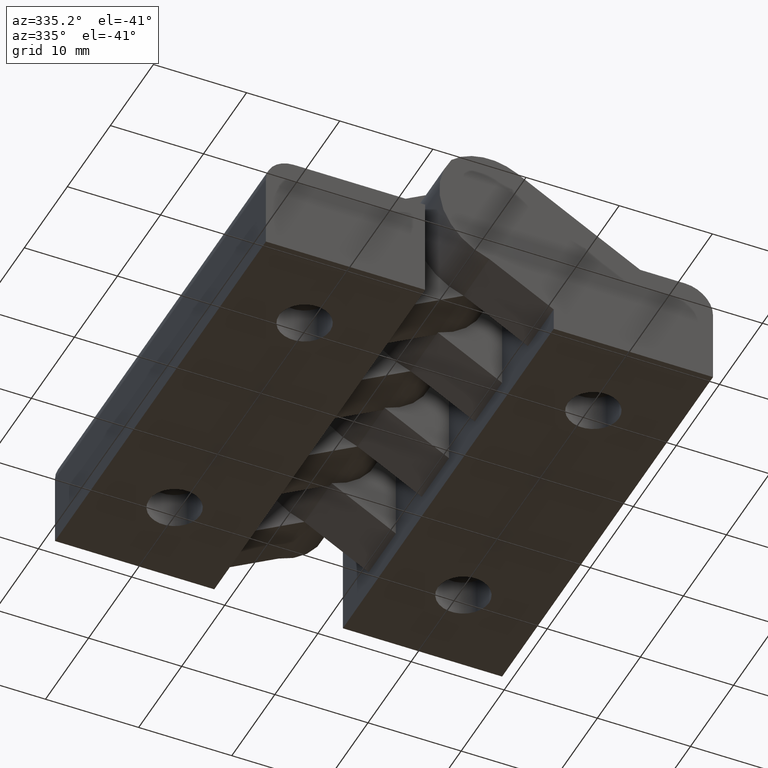
[diagram: clean part render]
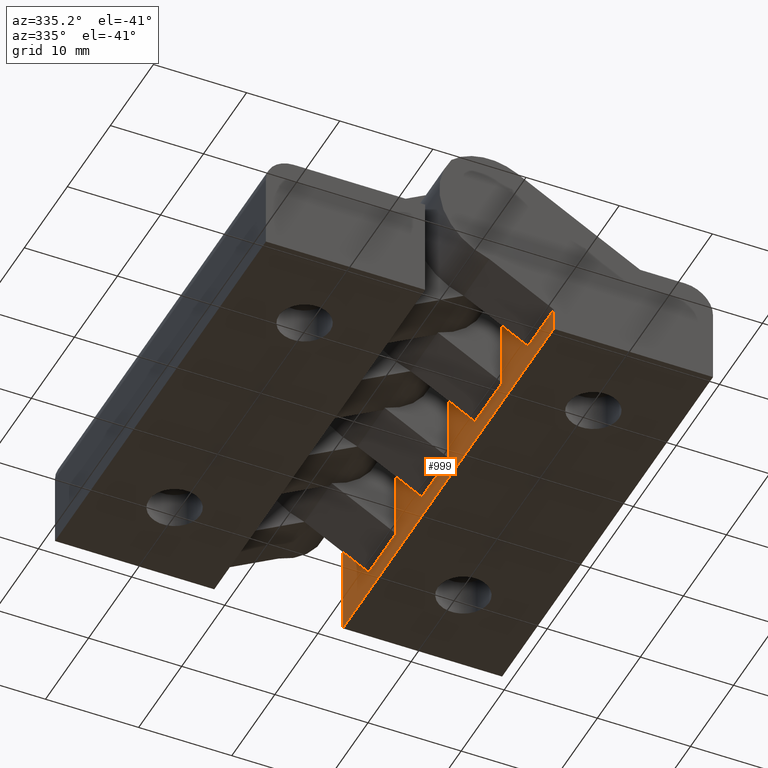
[diagram: same view with one face highlighted and labeled with its STEP entity id]
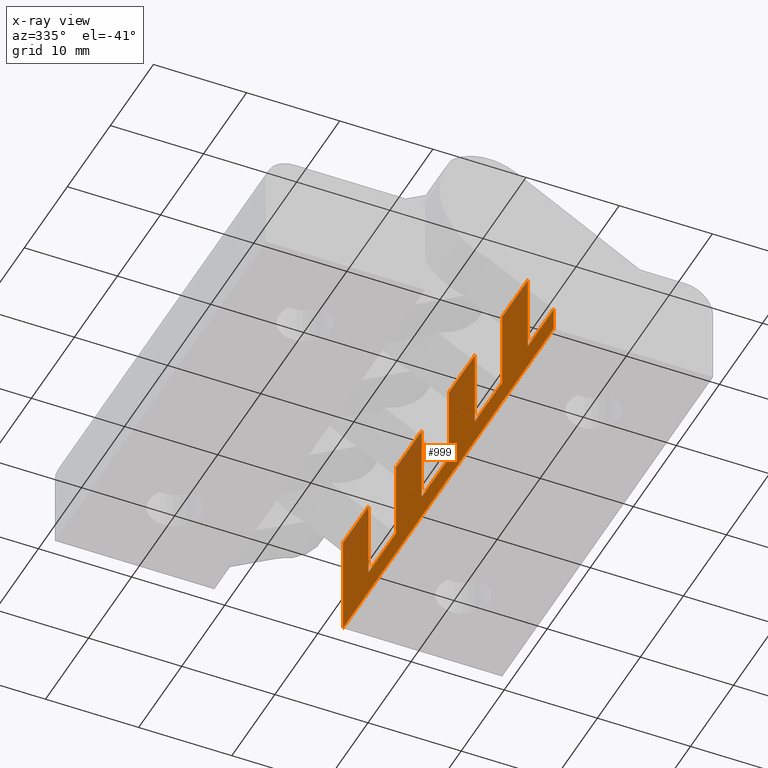
[diagram: x-ray of the same camera — body ghosted, the highlighted face saturated]
A machine part, auxiliary view. The second image highlights one B-rep face of the part: STEP entity #999.
The next image is the same camera in x-ray: the body ghosted, the highlighted face saturated — about 15% of this face is hidden behind the body in this view.
In plain terms, the highlighted planar face has unit normal (-1, 0, 0).
Its self-contained STEP definition (entity closure, byte-faithful):
#473=CARTESIAN_POINT('',(22.399999999910534,-27.600000000037646,2.499999999990111));
#474=VERTEX_POINT('',#473);
#482=CARTESIAN_POINT('',(22.399999999910534,-21.266666666704314,2.499999999990111));
#483=VERTEX_POINT('',#482);
#490=CARTESIAN_POINT('',(22.399999999910534,-21.266666666704314,2.499999999990111));
#491=DIRECTION('',(0.0,-1.0,0.0));
#492=VECTOR('',#491,6.333333333333332);
#493=LINE('',#490,#492);
#494=EDGE_CURVE('',#483,#474,#493,.T.);
#504=CARTESIAN_POINT('',(22.399999999910534,-15.266666666704310,2.499999999990110));
#505=VERTEX_POINT('',#504);
#513=CARTESIAN_POINT('',(22.399999999910534,-8.933333333370978,2.499999999990110));
#514=VERTEX_POINT('',#513);
#521=CARTESIAN_POINT('',(22.399999999910534,-8.933333333370978,2.499999999990110));
#522=DIRECTION('',(0.0,-1.0,0.0));
#523=VECTOR('',#522,6.333333333333332);
#524=LINE('',#521,#523);
#525=EDGE_CURVE('',#514,#505,#524,.T.);
#535=CARTESIAN_POINT('',(22.399999999910534,-2.933333333370978,2.499999999990109));
#536=VERTEX_POINT('',#535);
#544=CARTESIAN_POINT('',(22.399999999910534,3.399999999962354,2.499999999990109));
#545=VERTEX_POINT('',#544);
#552=CARTESIAN_POINT('',(22.399999999910534,3.399999999962354,2.499999999990109));
#553=DIRECTION('',(0.0,-1.0,0.0));
#554=VECTOR('',#553,6.333333333333332);
#555=LINE('',#552,#554);
#556=EDGE_CURVE('',#545,#536,#555,.T.);
#567=CARTESIAN_POINT('',(22.399999999910534,-33.600000000037646,2.499999999990112));
#568=VERTEX_POINT('',#567);
#575=CARTESIAN_POINT('',(22.399999999910534,-39.600000000037646,2.499999999990112));
#576=VERTEX_POINT('',#575);
#577=CARTESIAN_POINT('',(22.399999999910534,-33.600000000037646,2.499999999990112));
#578=DIRECTION('',(0.0,-1.0,0.0));
#579=VECTOR('',#578,6.0);
#580=LINE('',#577,#579);
#581=EDGE_CURVE('',#568,#576,#580,.T.);
#607=CARTESIAN_POINT('',(22.399999999910506,-39.600000000037646,2.424801E-015));
#608=VERTEX_POINT('',#607);
#615=CARTESIAN_POINT('',(22.399999999910506,9.399999999766358,-5.755840E-016));
#616=VERTEX_POINT('',#615);
#617=CARTESIAN_POINT('',(22.399999999910506,-39.600000000037646,2.424801E-015));
#618=DIRECTION('',(0.0,1.0,0.0));
#619=VECTOR('',#618,48.999999999804004);
#620=LINE('',#617,#619);
#621=EDGE_CURVE('',#608,#616,#620,.T.);
#701=CARTESIAN_POINT('',(22.399999999910506,9.399999999962354,10.999999999956287));
#702=VERTEX_POINT('',#701);
#703=CARTESIAN_POINT('',(22.399999999910506,9.399999999962354,10.999999999956287));
#704=DIRECTION('',(2.583792E-015,-1.781783E-011,-1.0));
#705=VECTOR('',#704,10.999999999956287);
#706=LINE('',#703,#705);
#707=EDGE_CURVE('',#702,#616,#706,.T.);
#735=CARTESIAN_POINT('',(22.399999999910534,-39.600000000037646,2.499999999990112));
#736=DIRECTION('',(0.0,0.0,-1.0));
#737=VECTOR('',#736,2.499999999990109);
#738=LINE('',#735,#737);
#739=EDGE_CURVE('',#576,#608,#738,.T.);
#751=CARTESIAN_POINT('',(22.399999999910506,-33.600000000037646,10.999999999956289));
#752=VERTEX_POINT('',#751);
#753=CARTESIAN_POINT('',(22.399999999910506,-33.600000000037646,2.499999999990112));
#754=DIRECTION('',(0.0,0.0,1.0));
#755=VECTOR('',#754,8.499999999966178);
#756=LINE('',#753,#755);
#757=EDGE_CURVE('',#568,#752,#756,.T.);
#777=CARTESIAN_POINT('',(22.399999999910506,-27.600000000037646,10.999999999956289));
#778=VERTEX_POINT('',#777);
#789=CARTESIAN_POINT('',(22.399999999910506,-27.600000000037646,2.499999999990111));
#790=DIRECTION('',(0.0,0.0,1.0));
#791=VECTOR('',#790,8.499999999966178);
#792=LINE('',#789,#791);
#793=EDGE_CURVE('',#474,#778,#792,.T.);
#803=CARTESIAN_POINT('',(22.399999999910506,-21.266666666704310,10.999999999956289));
#804=VERTEX_POINT('',#803);
#805=CARTESIAN_POINT('',(22.399999999910506,-21.266666666704310,2.499999999990111));
#806=DIRECTION('',(0.0,0.0,1.0));
#807=VECTOR('',#806,8.499999999966178);
#808=LINE('',#805,#807);
#809=EDGE_CURVE('',#483,#804,#808,.T.);
#829=CARTESIAN_POINT('',(22.399999999910506,-15.266666666704312,10.999999999956289));
#830=VERTEX_POINT('',#829);
#841=CARTESIAN_POINT('',(22.399999999910506,-15.266666666704312,2.499999999990110));
#842=DIRECTION('',(0.0,0.0,1.0));
#843=VECTOR('',#842,8.499999999966178);
#844=LINE('',#841,#843);
#845=EDGE_CURVE('',#505,#830,#844,.T.);
#855=CARTESIAN_POINT('',(22.399999999910506,-8.933333333370978,10.999999999956287));
#856=VERTEX_POINT('',#855);
#857=CARTESIAN_POINT('',(22.399999999910506,-8.933333333370978,2.499999999990110));
#858=DIRECTION('',(0.0,0.0,1.0));
#859=VECTOR('',#858,8.499999999966178);
#860=LINE('',#857,#859);
#861=EDGE_CURVE('',#514,#856,#860,.T.);
#881=CARTESIAN_POINT('',(22.399999999910506,-2.933333333370977,10.999999999956287));
#882=VERTEX_POINT('',#881);
#893=CARTESIAN_POINT('',(22.399999999910506,-2.933333333370978,2.499999999990109));
#894=DIRECTION('',(0.0,0.0,1.0));
#895=VECTOR('',#894,8.499999999966178);
#896=LINE('',#893,#895);
#897=EDGE_CURVE('',#536,#882,#896,.T.);
#907=CARTESIAN_POINT('',(22.399999999910506,3.399999999962355,10.999999999956287));
#908=VERTEX_POINT('',#907);
#909=CARTESIAN_POINT('',(22.399999999910506,3.399999999962354,2.499999999990109));
#910=DIRECTION('',(0.0,0.0,1.0));
#911=VECTOR('',#910,8.499999999966178);
#912=LINE('',#909,#911);
#913=EDGE_CURVE('',#545,#908,#912,.T.);
#938=CARTESIAN_POINT('',(22.399999999910506,3.399999999962355,10.999999999956287));
#939=DIRECTION('',(0.0,1.0,0.0));
#940=VECTOR('',#939,5.999999999999999);
#941=LINE('',#938,#940);
#942=EDGE_CURVE('',#908,#702,#941,.T.);
#947=CARTESIAN_POINT('',(22.399999999910506,-8.933333333370978,10.999999999956287));
#948=DIRECTION('',(0.0,1.0,0.0));
#949=VECTOR('',#948,6.0);
#950=LINE('',#947,#949);
#951=EDGE_CURVE('',#856,#882,#950,.T.);
#956=CARTESIAN_POINT('',(22.399999999910506,-21.266666666704310,10.999999999956289));
#957=DIRECTION('',(0.0,1.0,0.0));
#958=VECTOR('',#957,6.0);
#959=LINE('',#956,#958);
#960=EDGE_CURVE('',#804,#830,#959,.T.);
#965=CARTESIAN_POINT('',(22.399999999910506,-33.600000000037646,10.999999999956289));
#966=DIRECTION('',(0.0,1.0,0.0));
#967=VECTOR('',#966,6.0);
#968=LINE('',#965,#967);
#969=EDGE_CURVE('',#752,#778,#968,.T.);
#974=CARTESIAN_POINT('',(22.399999999910534,9.400043306853611,11.000043307043541));
#975=DIRECTION('',(-1.0,0.0,0.0));
#976=DIRECTION('',(0.0,0.0,-1.0));
#977=AXIS2_PLACEMENT_3D('',#974,#975,#976);
#978=PLANE('',#977);
#979=ORIENTED_EDGE('',*,*,#757,.T.);
#980=ORIENTED_EDGE('',*,*,#969,.T.);
#981=ORIENTED_EDGE('',*,*,#793,.F.);
#982=ORIENTED_EDGE('',*,*,#494,.F.);
#983=ORIENTED_EDGE('',*,*,#809,.T.);
#984=ORIENTED_EDGE('',*,*,#960,.T.);
#985=ORIENTED_EDGE('',*,*,#845,.F.);
#986=ORIENTED_EDGE('',*,*,#525,.F.);
#987=ORIENTED_EDGE('',*,*,#861,.T.);
#988=ORIENTED_EDGE('',*,*,#951,.T.);
#989=ORIENTED_EDGE('',*,*,#897,.F.);
#990=ORIENTED_EDGE('',*,*,#556,.F.);
#991=ORIENTED_EDGE('',*,*,#913,.T.);
#992=ORIENTED_EDGE('',*,*,#942,.T.);
#993=ORIENTED_EDGE('',*,*,#707,.T.);
#994=ORIENTED_EDGE('',*,*,#621,.F.);
#995=ORIENTED_EDGE('',*,*,#739,.F.);
#996=ORIENTED_EDGE('',*,*,#581,.F.);
#997=EDGE_LOOP('',(#979,#980,#981,#982,#983,#984,#985,#986,#987,#988,#989,#990,#991,#992,#993,#994,#995,#996));
#998=FACE_OUTER_BOUND('',#997,.T.);
#999=ADVANCED_FACE('',(#998),#978,.T.);